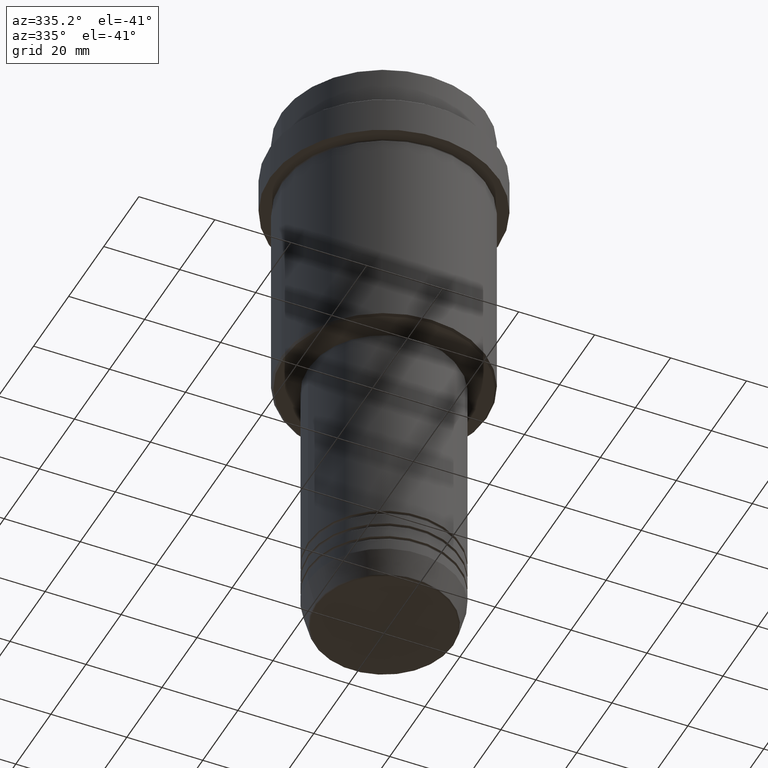
[diagram: clean part render]
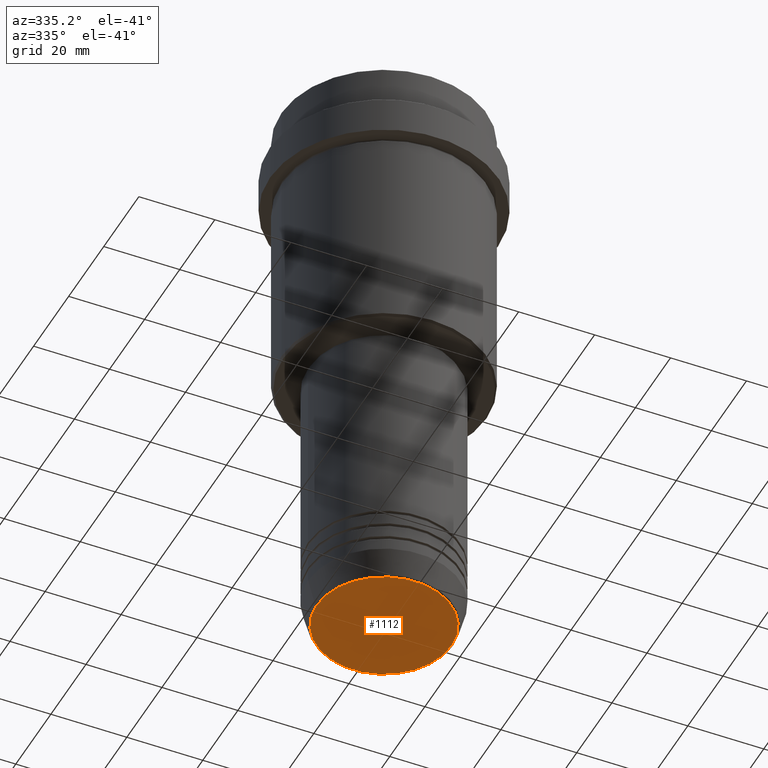
[diagram: same view with one face highlighted and labeled with its STEP entity id]
A machine part, auxiliary view. The second image highlights one B-rep face of the part: STEP entity #1112.
In plain terms, the highlighted planar face has unit normal (0, -0, 1).
Its self-contained STEP definition (entity closure, byte-faithful):
#6 = DIRECTION ( 'NONE',  ( 1.000000000000000000, 0.000000000000000000, 0.000000000000000000 ) ) ;
#195 = VERTEX_POINT ( 'NONE', #205 ) ;
#205 = CARTESIAN_POINT ( 'NONE',  ( -17.74069215899265473, 2.202181136001356381E-15, -153.0000000000000000 ) ) ;
#227 = EDGE_CURVE ( 'NONE', #195, #1307, #1381, .T. ) ;
#291 = EDGE_LOOP ( 'NONE', ( #385, #656 ) ) ;
#314 = CARTESIAN_POINT ( 'NONE',  ( 0.000000000000000000, 0.000000000000000000, -153.0000000000000000 ) ) ;
#332 = DIRECTION ( 'NONE',  ( 0.000000000000000000, -0.000000000000000000, 1.000000000000000000 ) ) ;
#339 = EDGE_CURVE ( 'NONE', #1307, #195, #1107, .T. ) ;
#340 = CARTESIAN_POINT ( 'NONE',  ( 0.000000000000000000, 0.000000000000000000, -153.0000000000000000 ) ) ;
#385 = ORIENTED_EDGE ( 'NONE', *, *, #339, .T. ) ;
#405 = DIRECTION ( 'NONE',  ( 1.000000000000000000, 0.000000000000000000, 0.000000000000000000 ) ) ;
#435 = DIRECTION ( 'NONE',  ( 0.000000000000000000, 0.000000000000000000, -1.000000000000000000 ) ) ;
#650 = AXIS2_PLACEMENT_3D ( 'NONE', #340, #332, #6 ) ;
#656 = ORIENTED_EDGE ( 'NONE', *, *, #227, .T. ) ;
#674 = CARTESIAN_POINT ( 'NONE',  ( 0.000000000000000000, 0.000000000000000000, -153.0000000000000000 ) ) ;
#708 = CARTESIAN_POINT ( 'NONE',  ( 17.74069215899265473, 0.000000000000000000, -153.0000000000000000 ) ) ;
#761 = PLANE ( 'NONE',  #650 ) ;
#821 = AXIS2_PLACEMENT_3D ( 'NONE', #314, #1191, #405 ) ;
#891 = DIRECTION ( 'NONE',  ( 1.000000000000000000, 0.000000000000000000, 0.000000000000000000 ) ) ;
#978 = FACE_OUTER_BOUND ( 'NONE', #291, .T. ) ;
#1055 = AXIS2_PLACEMENT_3D ( 'NONE', #674, #435, #891 ) ;
#1107 = CIRCLE ( 'NONE', #1055, 17.74069215899265473 ) ;
#1112 = ADVANCED_FACE ( 'NONE', ( #978 ), #761, .F. ) ;
#1191 = DIRECTION ( 'NONE',  ( 0.000000000000000000, 0.000000000000000000, -1.000000000000000000 ) ) ;
#1307 = VERTEX_POINT ( 'NONE', #708 ) ;
#1381 = CIRCLE ( 'NONE', #821, 17.74069215899265473 ) ;